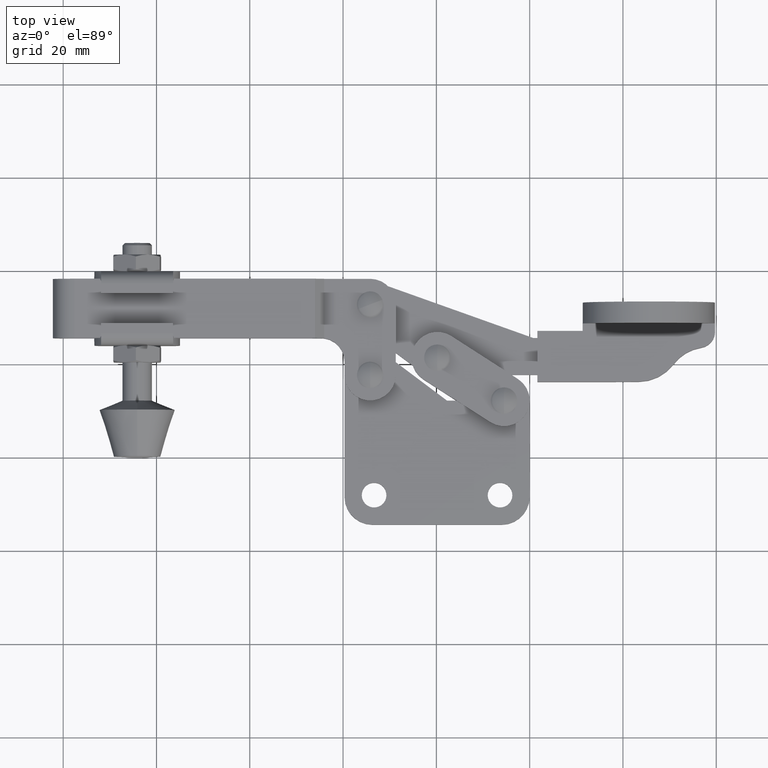
[diagram: clean part render]
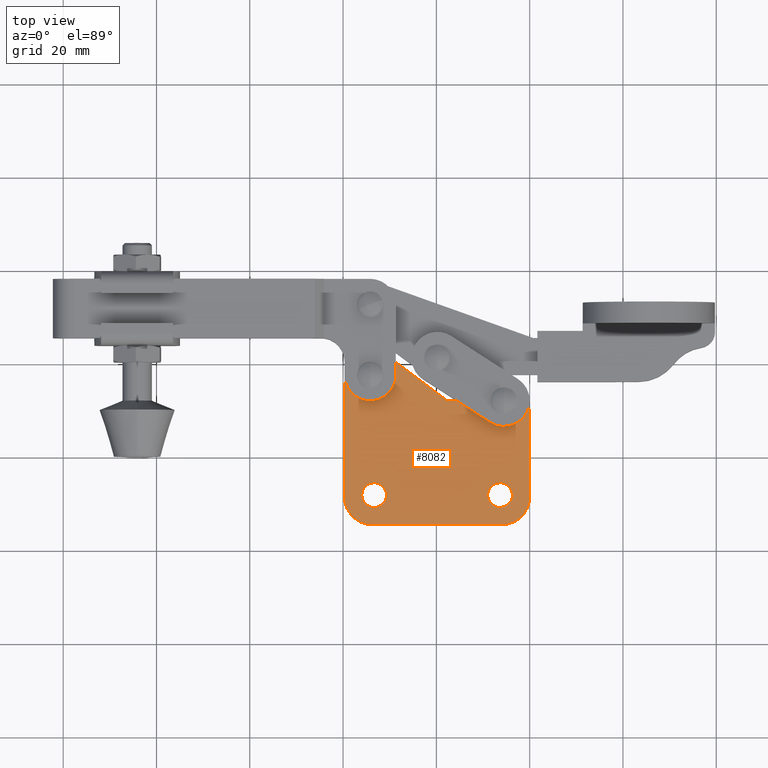
[diagram: same view with one face highlighted and labeled with its STEP entity id]
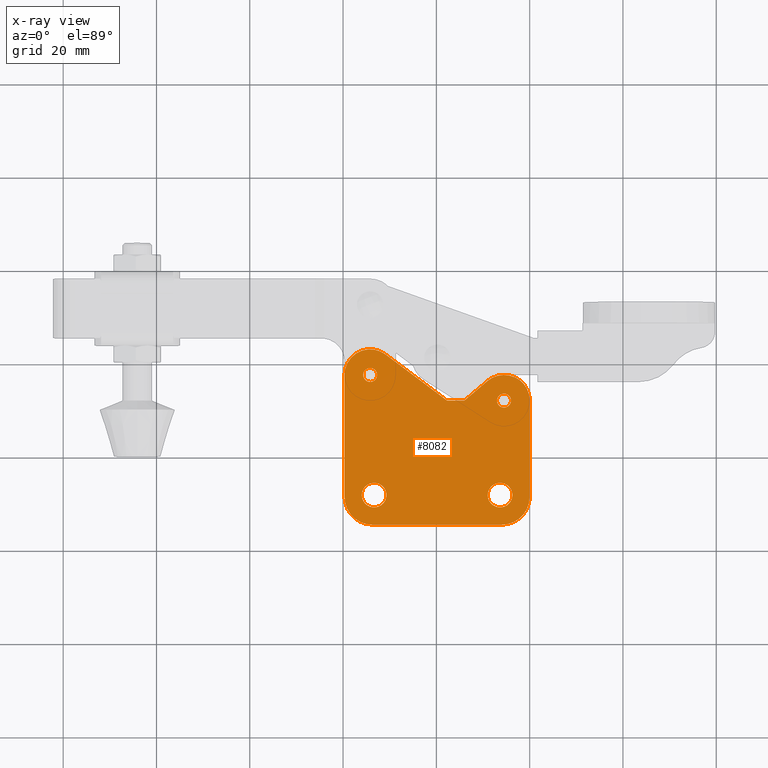
[diagram: x-ray of the same camera — body ghosted, the highlighted face saturated]
A machine part, top view. The second image highlights one B-rep face of the part: STEP entity #8082.
The next image is the same camera in x-ray: the body ghosted, the highlighted face saturated — about 0% of this face is hidden behind the body in this view.
In plain terms, the highlighted planar face has unit normal (0, 0, 1).
Its self-contained STEP definition (entity closure, byte-faithful):
#2 = AXIS2_PLACEMENT_3D ( 'NONE', #7359, #6065, #3167 ) ;
#13 = ORIENTED_EDGE ( 'NONE', *, *, #6461, .T. ) ;
#14 = EDGE_CURVE ( 'NONE', #1421, #1279, #5913, .T. ) ;
#53 = ORIENTED_EDGE ( 'NONE', *, *, #2783, .F. ) ;
#120 = VERTEX_POINT ( 'NONE', #3277 ) ;
#229 = LINE ( 'NONE', #585, #7832 ) ;
#342 = AXIS2_PLACEMENT_3D ( 'NONE', #2478, #3187, #8215 ) ;
#371 = CARTESIAN_POINT ( 'NONE',  ( -6.999999999999999100, 11.69999999999999900, 1.500000000000000000 ) ) ;
#400 = ORIENTED_EDGE ( 'NONE', *, *, #9208, .T. ) ;
#402 = DIRECTION ( 'NONE',  ( -0.8000000000000050400, 0.5999999999999932100, 0.0000000000000000000 ) ) ;
#403 = EDGE_CURVE ( 'NONE', #120, #5810, #7942, .T. ) ;
#525 = DIRECTION ( 'NONE',  ( 1.000000000000000000, 0.0000000000000000000, 0.0000000000000000000 ) ) ;
#585 = CARTESIAN_POINT ( 'NONE',  ( -33.69999999999965500, -14.90000000000009100, 1.500000000000000000 ) ) ;
#921 = VERTEX_POINT ( 'NONE', #3623 ) ;
#1087 = VERTEX_POINT ( 'NONE', #2849 ) ;
#1105 = CARTESIAN_POINT ( 'NONE',  ( -5.499999999999999100, 11.69999999999999900, 1.500000000000000000 ) ) ;
#1106 = CIRCLE ( 'NONE', #8114, 6.000000000000001800 ) ;
#1145 = EDGE_CURVE ( 'NONE', #5235, #5836, #1106, .T. ) ;
#1176 = EDGE_CURVE ( 'NONE', #5257, #6503, #1447, .T. ) ;
#1251 = EDGE_CURVE ( 'NONE', #6503, #5257, #2432, .T. ) ;
#1279 = VERTEX_POINT ( 'NONE', #1289 ) ;
#1289 = CARTESIAN_POINT ( 'NONE',  ( -3.999999999999998200, 11.69999999999999900, 1.500000000000000000 ) ) ;
#1406 = EDGE_CURVE ( 'NONE', #2067, #921, #8049, .T. ) ;
#1414 = DIRECTION ( 'NONE',  ( 1.000000000000000000, 0.0000000000000000000, 0.0000000000000000000 ) ) ;
#1421 = VERTEX_POINT ( 'NONE', #371 ) ;
#1447 = CIRCLE ( 'NONE', #1703, 2.649999999999999500 ) ;
#1601 = CIRCLE ( 'NONE', #6855, 1.500000000000001300 ) ;
#1628 = EDGE_CURVE ( 'NONE', #5836, #5334, #229, .T. ) ;
#1703 = AXIS2_PLACEMENT_3D ( 'NONE', #8322, #6809, #5490 ) ;
#1801 = FACE_BOUND ( 'NONE', #4615, .T. ) ;
#1822 = CARTESIAN_POINT ( 'NONE',  ( -30.69999999999969400, -8.550000000000121500, 1.500000000000000000 ) ) ;
#2030 = DIRECTION ( 'NONE',  ( 0.0000000000000000000, 0.0000000000000000000, 1.000000000000000000 ) ) ;
#2067 = VERTEX_POINT ( 'NONE', #5542 ) ;
#2113 = ORIENTED_EDGE ( 'NONE', *, *, #3749, .F. ) ;
#2240 = ORIENTED_EDGE ( 'NONE', *, *, #3376, .F. ) ;
#2339 = VERTEX_POINT ( 'NONE', #6054 ) ;
#2379 = CARTESIAN_POINT ( 'NONE',  ( 1.908195823574487800E-013, 11.69999999999999900, 1.500000000000000000 ) ) ;
#2405 = EDGE_CURVE ( 'NONE', #921, #5495, #3697, .T. ) ;
#2432 = CIRCLE ( 'NONE', #6051, 2.649999999999999500 ) ;
#2478 = CARTESIAN_POINT ( 'NONE',  ( -6.349999999999670100, -8.550000000000121500, 1.500000000000000000 ) ) ;
#2497 = CARTESIAN_POINT ( 'NONE',  ( -33.69999999999965500, -9.200000000000097000, 1.500000000000000000 ) ) ;
#2567 = AXIS2_PLACEMENT_3D ( 'NONE', #2497, #3198, #8229 ) ;
#2748 = CARTESIAN_POINT ( 'NONE',  ( -13.99999999999995200, 11.70000000000005800, 1.500000000000000000 ) ) ;
#2779 = ORIENTED_EDGE ( 'NONE', *, *, #2405, .T. ) ;
#2783 = EDGE_CURVE ( 'NONE', #8307, #7951, #6428, .T. ) ;
#2828 = CARTESIAN_POINT ( 'NONE',  ( -13.99999999999995200, 11.70000000000005800, 1.500000000000000000 ) ) ;
#2849 = CARTESIAN_POINT ( 'NONE',  ( -35.69999999999994600, 17.20000000000000600, 1.500000000000000000 ) ) ;
#2910 = CARTESIAN_POINT ( 'NONE',  ( -39.69999999999989600, 17.20000000000000600, 1.500000000000000000 ) ) ;
#2966 = DIRECTION ( 'NONE',  ( 0.0000000000000000000, 0.0000000000000000000, 1.000000000000000000 ) ) ;
#2970 = DIRECTION ( 'NONE',  ( 8.936454270183517800E-015, -1.000000000000000000, 0.0000000000000000000 ) ) ;
#3167 = DIRECTION ( 'NONE',  ( 1.000000000000000000, 0.0000000000000000000, 0.0000000000000000000 ) ) ;
#3187 = DIRECTION ( 'NONE',  ( 0.0000000000000000000, 0.0000000000000000000, 1.000000000000000000 ) ) ;
#3198 = DIRECTION ( 'NONE',  ( 0.0000000000000000000, 0.0000000000000000000, 1.000000000000000000 ) ) ;
#3224 = AXIS2_PLACEMENT_3D ( 'NONE', #8502, #9184, #7037 ) ;
#3230 = DIRECTION ( 'NONE',  ( 1.000000000000000000, 0.0000000000000000000, 0.0000000000000000000 ) ) ;
#3277 = CARTESIAN_POINT ( 'NONE',  ( -17.69999999999987500, 11.70000000000005800, 1.500000000000000000 ) ) ;
#3353 = EDGE_LOOP ( 'NONE', ( #5727, #7969 ) ) ;
#3362 = LINE ( 'NONE', #2379, #5326 ) ;
#3376 = EDGE_CURVE ( 'NONE', #7951, #8307, #7213, .T. ) ;
#3439 = CARTESIAN_POINT ( 'NONE',  ( -34.19999999999994600, 17.20000000000000600, 1.500000000000000000 ) ) ;
#3550 = EDGE_LOOP ( 'NONE', ( #3659, #6692 ) ) ;
#3582 = DIRECTION ( 'NONE',  ( 0.0000000000000000000, 0.0000000000000000000, 1.000000000000000000 ) ) ;
#3623 = CARTESIAN_POINT ( 'NONE',  ( -9.058823529411986500, 15.89342045191101800, 1.500000000000000000 ) ) ;
#3659 = ORIENTED_EDGE ( 'NONE', *, *, #3936, .F. ) ;
#3697 = LINE ( 'NONE', #2748, #8528 ) ;
#3698 = FACE_BOUND ( 'NONE', #3353, .T. ) ;
#3749 = EDGE_CURVE ( 'NONE', #5334, #5861, #7444, .T. ) ;
#3936 = EDGE_CURVE ( 'NONE', #1087, #2339, #7677, .T. ) ;
#4015 = ORIENTED_EDGE ( 'NONE', *, *, #1406, .T. ) ;
#4061 = CIRCLE ( 'NONE', #8516, 5.499999999999945800 ) ;
#4136 = DIRECTION ( 'NONE',  ( 1.000000000000000000, 0.0000000000000000000, 0.0000000000000000000 ) ) ;
#4196 = DIRECTION ( 'NONE',  ( 1.000000000000000000, 0.0000000000000000000, 0.0000000000000000000 ) ) ;
#4567 = CARTESIAN_POINT ( 'NONE',  ( -5.499999999999999100, 11.69999999999999900, 1.500000000000000000 ) ) ;
#4608 = VECTOR ( 'NONE', #402, 1000.000000000000100 ) ;
#4615 = EDGE_LOOP ( 'NONE', ( #53, #2240 ) ) ;
#4672 = EDGE_CURVE ( 'NONE', #5810, #7145, #4061, .T. ) ;
#4761 = CARTESIAN_POINT ( 'NONE',  ( -34.19999999999994600, 17.20000000000000600, 1.500000000000000000 ) ) ;
#4801 = CARTESIAN_POINT ( 'NONE',  ( -39.69999999999966200, -8.900000000000144200, 1.500000000000000000 ) ) ;
#4898 = CIRCLE ( 'NONE', #6928, 1.500000000000000400 ) ;
#5129 = DIRECTION ( 'NONE',  ( 0.0000000000000000000, 0.0000000000000000000, 1.000000000000000000 ) ) ;
#5235 = VERTEX_POINT ( 'NONE', #7711 ) ;
#5257 = VERTEX_POINT ( 'NONE', #1822 ) ;
#5326 = VECTOR ( 'NONE', #6694, 1000.000000000000000 ) ;
#5334 = VERTEX_POINT ( 'NONE', #5773 ) ;
#5355 = ORIENTED_EDGE ( 'NONE', *, *, #7043, .T. ) ;
#5401 = AXIS2_PLACEMENT_3D ( 'NONE', #1105, #8690, #525 ) ;
#5490 = DIRECTION ( 'NONE',  ( 1.000000000000000000, 0.0000000000000000000, 0.0000000000000000000 ) ) ;
#5495 = VERTEX_POINT ( 'NONE', #2828 ) ;
#5542 = CARTESIAN_POINT ( 'NONE',  ( 1.882174971434835700E-013, 11.69999999999999900, 1.500000000000000000 ) ) ;
#5727 = ORIENTED_EDGE ( 'NONE', *, *, #1176, .F. ) ;
#5773 = CARTESIAN_POINT ( 'NONE',  ( -33.69999999999965500, -14.90000000000009800, 1.500000000000001300 ) ) ;
#5810 = VERTEX_POINT ( 'NONE', #6780 ) ;
#5836 = VERTEX_POINT ( 'NONE', #7282 ) ;
#5861 = VERTEX_POINT ( 'NONE', #4801 ) ;
#5878 = FACE_BOUND ( 'NONE', #3550, .T. ) ;
#5893 = LINE ( 'NONE', #2910, #7766 ) ;
#5913 = CIRCLE ( 'NONE', #3224, 1.500000000000000400 ) ;
#6037 = CARTESIAN_POINT ( 'NONE',  ( -17.69999999999987500, 11.70000000000005800, 1.500000000000000000 ) ) ;
#6051 = AXIS2_PLACEMENT_3D ( 'NONE', #8849, #2030, #4136 ) ;
#6054 = CARTESIAN_POINT ( 'NONE',  ( -32.69999999999994600, 17.20000000000000600, 1.500000000000000000 ) ) ;
#6061 = AXIS2_PLACEMENT_3D ( 'NONE', #8583, #2966, #7246 ) ;
#6065 = DIRECTION ( 'NONE',  ( -0.0000000000000000000, -0.0000000000000000000, -1.000000000000000000 ) ) ;
#6334 = EDGE_CURVE ( 'NONE', #1279, #1421, #4898, .T. ) ;
#6344 = CARTESIAN_POINT ( 'NONE',  ( -3.699999999999670200, -8.550000000000121500, 1.500000000000000000 ) ) ;
#6428 = CIRCLE ( 'NONE', #6061, 2.649999999999999900 ) ;
#6461 = EDGE_CURVE ( 'NONE', #5495, #120, #7995, .T. ) ;
#6503 = VERTEX_POINT ( 'NONE', #8766 ) ;
#6692 = ORIENTED_EDGE ( 'NONE', *, *, #8817, .F. ) ;
#6694 = DIRECTION ( 'NONE',  ( 2.490033697574353200E-016, 1.000000000000000000, -0.0000000000000000000 ) ) ;
#6736 = DIRECTION ( 'NONE',  ( 0.0000000000000000000, 0.0000000000000000000, 1.000000000000000000 ) ) ;
#6780 = CARTESIAN_POINT ( 'NONE',  ( -30.90000000000000900, 21.59999999999998700, 1.500000000000000000 ) ) ;
#6809 = DIRECTION ( 'NONE',  ( 0.0000000000000000000, 0.0000000000000000000, 1.000000000000000000 ) ) ;
#6855 = AXIS2_PLACEMENT_3D ( 'NONE', #3439, #8463, #4196 ) ;
#6928 = AXIS2_PLACEMENT_3D ( 'NONE', #4567, #5129, #8655 ) ;
#7037 = DIRECTION ( 'NONE',  ( 1.000000000000000000, 0.0000000000000000000, 0.0000000000000000000 ) ) ;
#7043 = EDGE_CURVE ( 'NONE', #7145, #5861, #5893, .T. ) ;
#7145 = VERTEX_POINT ( 'NONE', #8827 ) ;
#7213 = CIRCLE ( 'NONE', #342, 2.649999999999999900 ) ;
#7246 = DIRECTION ( 'NONE',  ( 1.000000000000000000, 0.0000000000000000000, 0.0000000000000000000 ) ) ;
#7282 = CARTESIAN_POINT ( 'NONE',  ( -5.999999999999820600, -14.90000000000009800, 1.500000000000001300 ) ) ;
#7292 = FACE_OUTER_BOUND ( 'NONE', #8052, .T. ) ;
#7343 = CARTESIAN_POINT ( 'NONE',  ( -17.69999999999987500, 11.70000000000005800, 1.500000000000000000 ) ) ;
#7359 = CARTESIAN_POINT ( 'NONE',  ( -33.69999999999965500, -8.900000000000098100, 1.500000000000001300 ) ) ;
#7444 = CIRCLE ( 'NONE', #2, 5.999999999999998200 ) ;
#7462 = EDGE_LOOP ( 'NONE', ( #8073, #9198 ) ) ;
#7513 = PLANE ( 'NONE',  #2567 ) ;
#7516 = DIRECTION ( 'NONE',  ( -0.0000000000000000000, -0.0000000000000000000, -1.000000000000000000 ) ) ;
#7677 = CIRCLE ( 'NONE', #8743, 1.500000000000001300 ) ;
#7678 = ORIENTED_EDGE ( 'NONE', *, *, #1145, .F. ) ;
#7700 = DIRECTION ( 'NONE',  ( -1.000000000000000000, -0.0000000000000000000, -0.0000000000000000000 ) ) ;
#7711 = CARTESIAN_POINT ( 'NONE',  ( 1.821459649775647400E-013, -8.900000000000098100, 1.500000000000001300 ) ) ;
#7766 = VECTOR ( 'NONE', #2970, 1000.000000000000000 ) ;
#7779 = VECTOR ( 'NONE', #7700, 1000.000000000000000 ) ;
#7832 = VECTOR ( 'NONE', #8500, 1000.000000000000000 ) ;
#7942 = LINE ( 'NONE', #6037, #4608 ) ;
#7951 = VERTEX_POINT ( 'NONE', #8815 ) ;
#7969 = ORIENTED_EDGE ( 'NONE', *, *, #1251, .F. ) ;
#7995 = LINE ( 'NONE', #7343, #7779 ) ;
#8049 = CIRCLE ( 'NONE', #5401, 5.500000000000187400 ) ;
#8052 = EDGE_LOOP ( 'NONE', ( #2113, #8339, #7678, #400, #4015, #2779, #13, #8770, #8717, #5355 ) ) ;
#8073 = ORIENTED_EDGE ( 'NONE', *, *, #14, .F. ) ;
#8082 = ADVANCED_FACE ( 'NONE', ( #9182, #1801, #3698, #5878, #7292 ), #7513, .T. ) ;
#8114 = AXIS2_PLACEMENT_3D ( 'NONE', #8256, #7516, #3230 ) ;
#8215 = DIRECTION ( 'NONE',  ( 1.000000000000000000, 0.0000000000000000000, 0.0000000000000000000 ) ) ;
#8229 = DIRECTION ( 'NONE',  ( 1.000000000000000000, 0.0000000000000000000, -0.0000000000000000000 ) ) ;
#8256 = CARTESIAN_POINT ( 'NONE',  ( -5.999999999999819700, -8.900000000000098100, 1.500000000000001300 ) ) ;
#8307 = VERTEX_POINT ( 'NONE', #6344 ) ;
#8322 = CARTESIAN_POINT ( 'NONE',  ( -33.34999999999969600, -8.550000000000121500, 1.500000000000000000 ) ) ;
#8339 = ORIENTED_EDGE ( 'NONE', *, *, #1628, .F. ) ;
#8463 = DIRECTION ( 'NONE',  ( 0.0000000000000000000, 0.0000000000000000000, 1.000000000000000000 ) ) ;
#8500 = DIRECTION ( 'NONE',  ( -1.000000000000000000, 2.505015849786017900E-016, 0.0000000000000000000 ) ) ;
#8502 = CARTESIAN_POINT ( 'NONE',  ( -5.499999999999999100, 11.69999999999999900, 1.500000000000000000 ) ) ;
#8516 = AXIS2_PLACEMENT_3D ( 'NONE', #9161, #6736, #8834 ) ;
#8528 = VECTOR ( 'NONE', #8991, 1000.000000000000100 ) ;
#8583 = CARTESIAN_POINT ( 'NONE',  ( -6.349999999999670100, -8.550000000000121500, 1.500000000000000000 ) ) ;
#8655 = DIRECTION ( 'NONE',  ( 1.000000000000000000, 0.0000000000000000000, 0.0000000000000000000 ) ) ;
#8690 = DIRECTION ( 'NONE',  ( 0.0000000000000000000, 0.0000000000000000000, 1.000000000000000000 ) ) ;
#8717 = ORIENTED_EDGE ( 'NONE', *, *, #4672, .T. ) ;
#8743 = AXIS2_PLACEMENT_3D ( 'NONE', #4761, #3582, #1414 ) ;
#8766 = CARTESIAN_POINT ( 'NONE',  ( -35.99999999999969400, -8.550000000000121500, 1.500000000000000000 ) ) ;
#8770 = ORIENTED_EDGE ( 'NONE', *, *, #403, .T. ) ;
#8815 = CARTESIAN_POINT ( 'NONE',  ( -8.999999999999669600, -8.550000000000121500, 1.500000000000000000 ) ) ;
#8817 = EDGE_CURVE ( 'NONE', #2339, #1087, #1601, .T. ) ;
#8827 = CARTESIAN_POINT ( 'NONE',  ( -39.69999999999989600, 17.20000000000000600, 1.500000000000000000 ) ) ;
#8834 = DIRECTION ( 'NONE',  ( 1.000000000000000000, 0.0000000000000000000, 0.0000000000000000000 ) ) ;
#8849 = CARTESIAN_POINT ( 'NONE',  ( -33.34999999999969600, -8.550000000000121500, 1.500000000000000000 ) ) ;
#8991 = DIRECTION ( 'NONE',  ( -0.7624400821656137600, -0.6470588235294316700, -0.0000000000000000000 ) ) ;
#9161 = CARTESIAN_POINT ( 'NONE',  ( -34.19999999999994600, 17.20000000000000600, 1.500000000000000000 ) ) ;
#9182 = FACE_BOUND ( 'NONE', #7462, .T. ) ;
#9184 = DIRECTION ( 'NONE',  ( 0.0000000000000000000, 0.0000000000000000000, 1.000000000000000000 ) ) ;
#9198 = ORIENTED_EDGE ( 'NONE', *, *, #6334, .F. ) ;
#9208 = EDGE_CURVE ( 'NONE', #5235, #2067, #3362, .T. ) ;